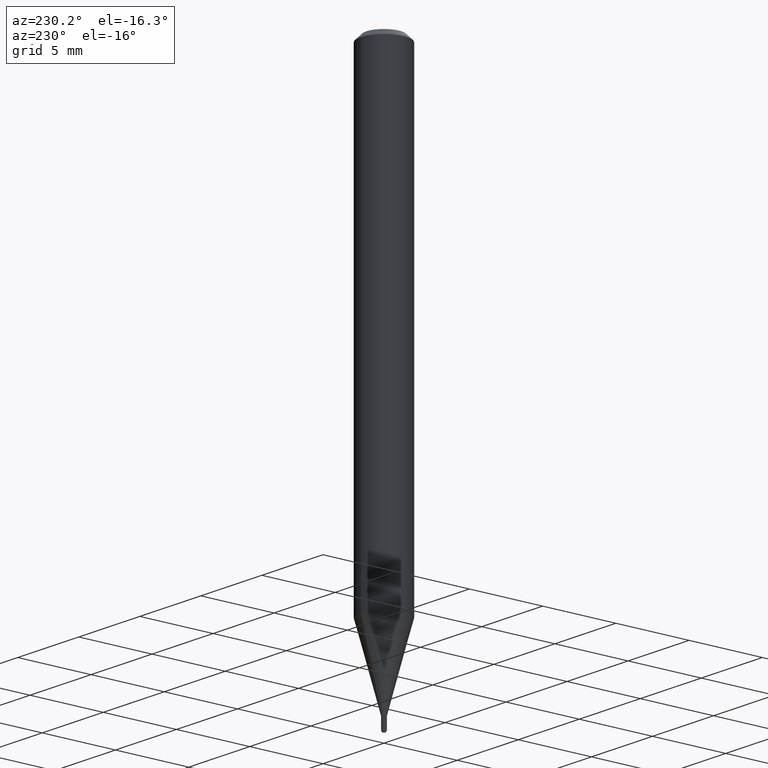
[diagram: clean part render]
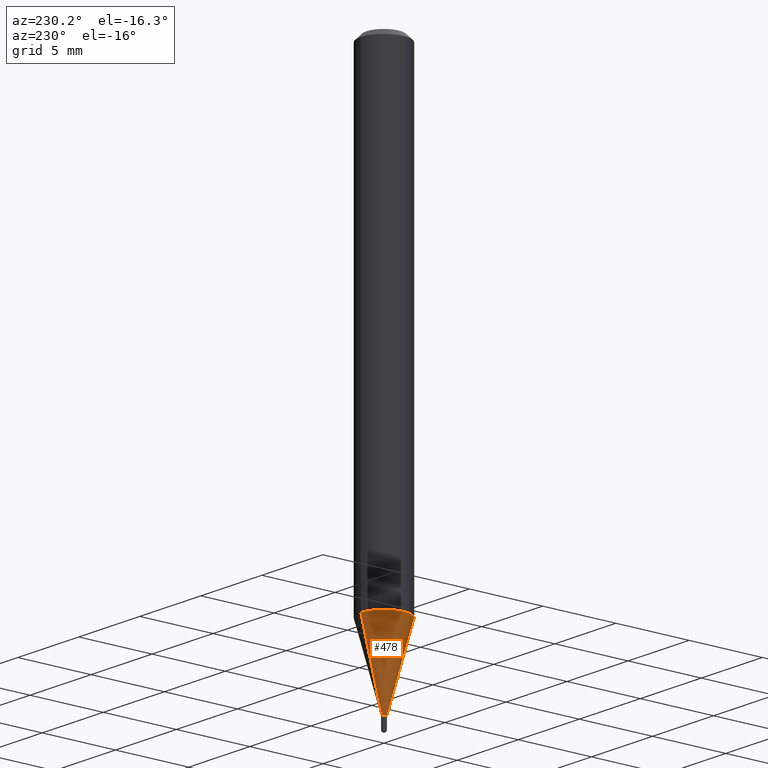
[diagram: same view with one face highlighted and labeled with its STEP entity id]
A machine part, auxiliary view. The second image highlights one B-rep face of the part: STEP entity #478.
In plain terms, the highlighted conical surface has half-angle 15 deg.
Its self-contained STEP definition (entity closure, byte-faithful):
#4 = DIRECTION ( 'NONE',  ( -1.807323732225378654E-15, -0.2588190451025251249, 0.9659258262890670910 ) ) ;
#20 = CARTESIAN_POINT ( 'NONE',  ( -4.364351673553611010E-16, -0.06250000000000438538, -1.253139129372365712 ) ) ;
#48 = VERTEX_POINT ( 'NONE', #90 ) ;
#79 = CIRCLE ( 'NONE', #431, 0.006000000000000197016 ) ;
#84 = CARTESIAN_POINT ( 'NONE',  ( 3.580168378193471381E-29, -5.111525750166084832E-15, -1.463999999999999968 ) ) ;
#90 = CARTESIAN_POINT ( 'NONE',  ( -4.189777606608316920E-17, -0.006000000000005308379, -1.463999999999999968 ) ) ;
#95 = VERTEX_POINT ( 'NONE', #20 ) ;
#113 = CARTESIAN_POINT ( 'NONE',  ( 3.064514401950711564E-29, -4.375309377272921071E-15, -1.253139129372365934 ) ) ;
#132 = CARTESIAN_POINT ( 'NONE',  ( -4.189777606608316920E-17, -0.006000000000005308379, -1.463999999999999968 ) ) ;
#136 = DIRECTION ( 'NONE',  ( -6.982962677686266711E-15, -1.000000000000000000, 0.000000000000000000 ) ) ;
#162 = DIRECTION ( 'NONE',  ( -6.982962677686265922E-15, -1.000000000000000000, 4.370956789862821150E-15 ) ) ;
#170 = ORIENTED_EDGE ( 'NONE', *, *, #437, .T. ) ;
#175 = ORIENTED_EDGE ( 'NONE', *, *, #303, .F. ) ;
#180 = EDGE_CURVE ( 'NONE', #320, #279, #354, .T. ) ;
#212 = DIRECTION ( 'NONE',  ( -2.445470203684064774E-29, 3.491479337545139615E-15, 1.000000000000000000 ) ) ;
#217 = DIRECTION ( 'NONE',  ( -6.982962677686266711E-15, -1.000000000000000000, 0.000000000000000000 ) ) ;
#219 = CARTESIAN_POINT ( 'NONE',  ( 3.580168378193471381E-29, -5.111525750166084832E-15, -1.463999999999999968 ) ) ;
#222 = ORIENTED_EDGE ( 'NONE', *, *, #488, .T. ) ;
#252 = CONICAL_SURFACE ( 'NONE', #447, 0.006000000000000197016, 0.2617993877991574569 ) ;
#275 = DIRECTION ( 'NONE',  ( -2.445470203684064774E-29, 3.491479337545139615E-15, 1.000000000000000000 ) ) ;
#277 = VECTOR ( 'NONE', #4, 39.37007874015748854 ) ;
#279 = VERTEX_POINT ( 'NONE', #510 ) ;
#288 = AXIS2_PLACEMENT_3D ( 'NONE', #113, #275, #162 ) ;
#303 = EDGE_CURVE ( 'NONE', #279, #95, #463, .T. ) ;
#320 = VERTEX_POINT ( 'NONE', #432 ) ;
#333 = LINE ( 'NONE', #132, #277 ) ;
#337 = VECTOR ( 'NONE', #424, 39.37007874015748143 ) ;
#354 = LINE ( 'NONE', #381, #337 ) ;
#373 = DIRECTION ( 'NONE',  ( -2.445470203684064774E-29, 3.491479337545139615E-15, 1.000000000000000000 ) ) ;
#376 = FACE_OUTER_BOUND ( 'NONE', #477, .T. ) ;
#381 = CARTESIAN_POINT ( 'NONE',  ( 4.263256414564321176E-17, 0.005999999999995085653, -1.463999999999999968 ) ) ;
#393 = ORIENTED_EDGE ( 'NONE', *, *, #180, .F. ) ;
#424 = DIRECTION ( 'NONE',  ( 1.839019923739649619E-15, 0.2588190451025318972, 0.9659258262890653146 ) ) ;
#431 = AXIS2_PLACEMENT_3D ( 'NONE', #84, #373, #136 ) ;
#432 = CARTESIAN_POINT ( 'NONE',  ( 2.433608869978683522E-16, 0.005999999999995085653, -1.463999999999999968 ) ) ;
#437 = EDGE_CURVE ( 'NONE', #48, #95, #333, .T. ) ;
#447 = AXIS2_PLACEMENT_3D ( 'NONE', #219, #212, #217 ) ;
#463 = CIRCLE ( 'NONE', #288, 0.06250000000000000000 ) ;
#477 = EDGE_LOOP ( 'NONE', ( #393, #222, #170, #175 ) ) ;
#478 = ADVANCED_FACE ( 'NONE', ( #376 ), #252, .T. ) ;
#488 = EDGE_CURVE ( 'NONE', #320, #48, #79, .T. ) ;
#510 = CARTESIAN_POINT ( 'NONE',  ( 4.440892098500930859E-16, 0.06249999999999562156, -1.253139129372366156 ) ) ;